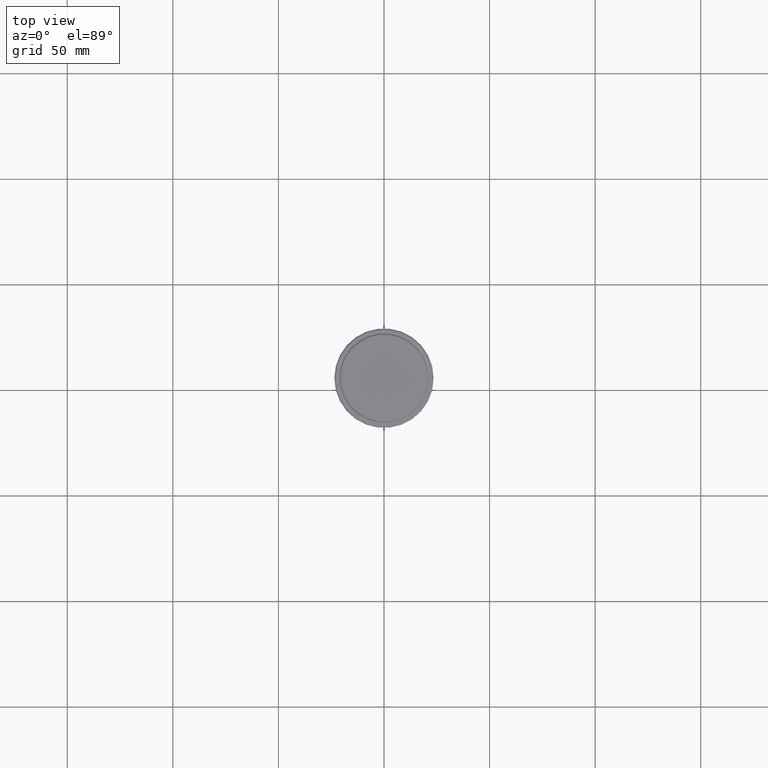
[diagram: clean part render]
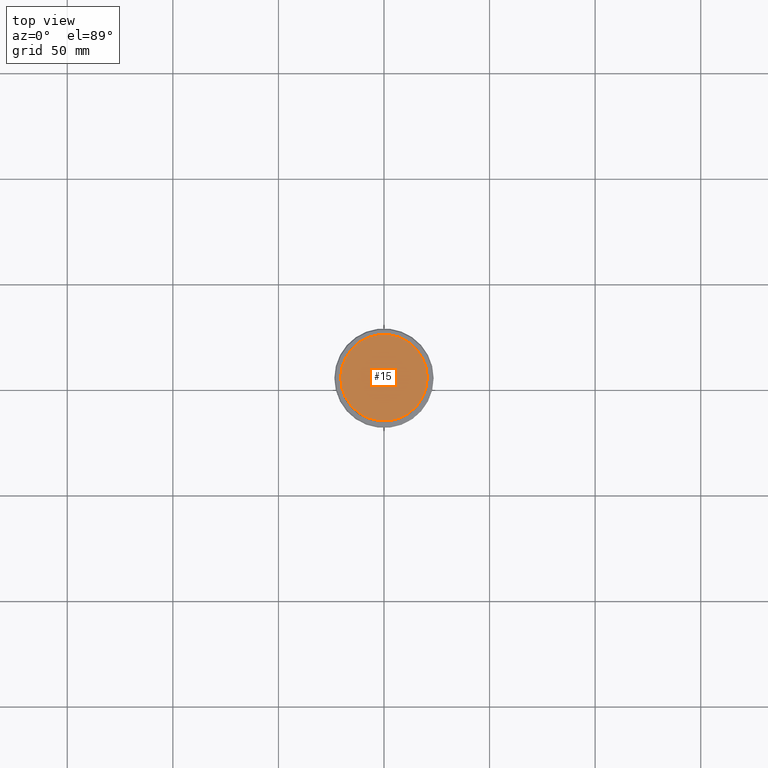
[diagram: same view with one face highlighted and labeled with its STEP entity id]
A machine part, top view. The second image highlights one B-rep face of the part: STEP entity #15.
In plain terms, the highlighted planar face has unit normal (0, -0, 1).
Its self-contained STEP definition (entity closure, byte-faithful):
#15 = ADVANCED_FACE ( 'NONE', ( #862 ), #93, .T. ) ;
#33 = EDGE_CURVE ( 'NONE', #1228, #1295, #732, .T. ) ;
#86 = CARTESIAN_POINT ( 'NONE',  ( 0.000000000000000000, 0.000000000000000000, 0.000000000000000000 ) ) ;
#93 = PLANE ( 'NONE',  #960 ) ;
#170 = DIRECTION ( 'NONE',  ( 1.000000000000000000, 0.000000000000000000, 0.000000000000000000 ) ) ;
#193 = CARTESIAN_POINT ( 'NONE',  ( 20.49999999999996447, 2.541142108230755507E-15, 0.000000000000000000 ) ) ;
#268 = AXIS2_PLACEMENT_3D ( 'NONE', #1152, #585, #170 ) ;
#307 = EDGE_CURVE ( 'NONE', #1295, #1228, #1255, .T. ) ;
#419 = DIRECTION ( 'NONE',  ( 1.000000000000000000, 0.000000000000000000, 0.000000000000000000 ) ) ;
#585 = DIRECTION ( 'NONE',  ( -0.000000000000000000, -0.000000000000000000, 1.000000000000000000 ) ) ;
#732 = CIRCLE ( 'NONE', #795, 20.49999999999996447 ) ;
#745 = CARTESIAN_POINT ( 'NONE',  ( 0.000000000000000000, 0.000000000000000000, 0.000000000000000000 ) ) ;
#783 = ORIENTED_EDGE ( 'NONE', *, *, #33, .T. ) ;
#795 = AXIS2_PLACEMENT_3D ( 'NONE', #86, #1408, #419 ) ;
#862 = FACE_OUTER_BOUND ( 'NONE', #1073, .T. ) ;
#871 = DIRECTION ( 'NONE',  ( 1.000000000000000000, 0.000000000000000000, 0.000000000000000000 ) ) ;
#881 = CARTESIAN_POINT ( 'NONE',  ( -20.49999999999996447, 0.000000000000000000, 0.000000000000000000 ) ) ;
#960 = AXIS2_PLACEMENT_3D ( 'NONE', #745, #1183, #871 ) ;
#1073 = EDGE_LOOP ( 'NONE', ( #1160, #783 ) ) ;
#1152 = CARTESIAN_POINT ( 'NONE',  ( 0.000000000000000000, 0.000000000000000000, 0.000000000000000000 ) ) ;
#1160 = ORIENTED_EDGE ( 'NONE', *, *, #307, .T. ) ;
#1183 = DIRECTION ( 'NONE',  ( 0.000000000000000000, -0.000000000000000000, 1.000000000000000000 ) ) ;
#1228 = VERTEX_POINT ( 'NONE', #193 ) ;
#1255 = CIRCLE ( 'NONE', #268, 20.49999999999996447 ) ;
#1295 = VERTEX_POINT ( 'NONE', #881 ) ;
#1408 = DIRECTION ( 'NONE',  ( -0.000000000000000000, -0.000000000000000000, 1.000000000000000000 ) ) ;